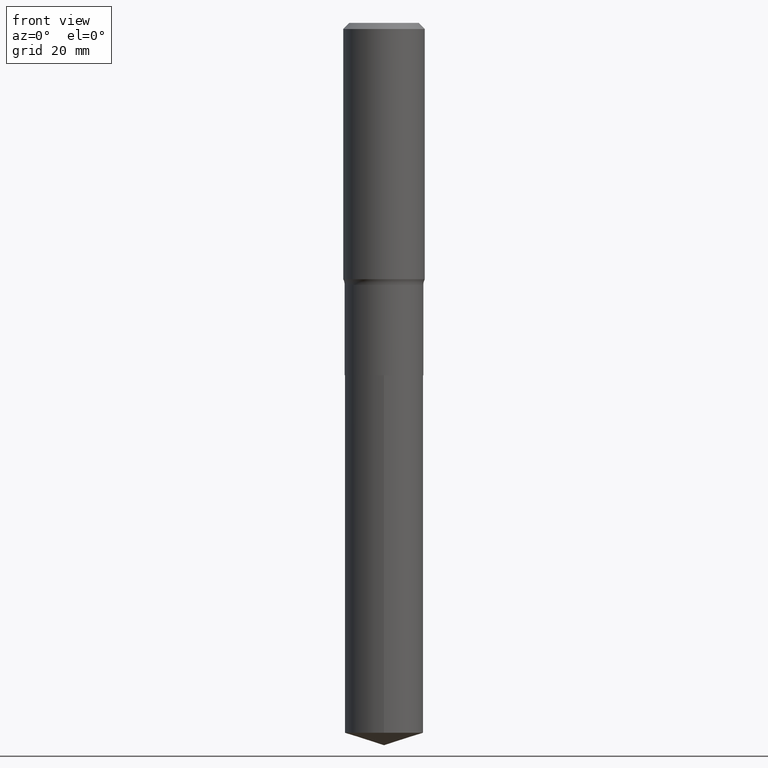
[diagram: clean part render]
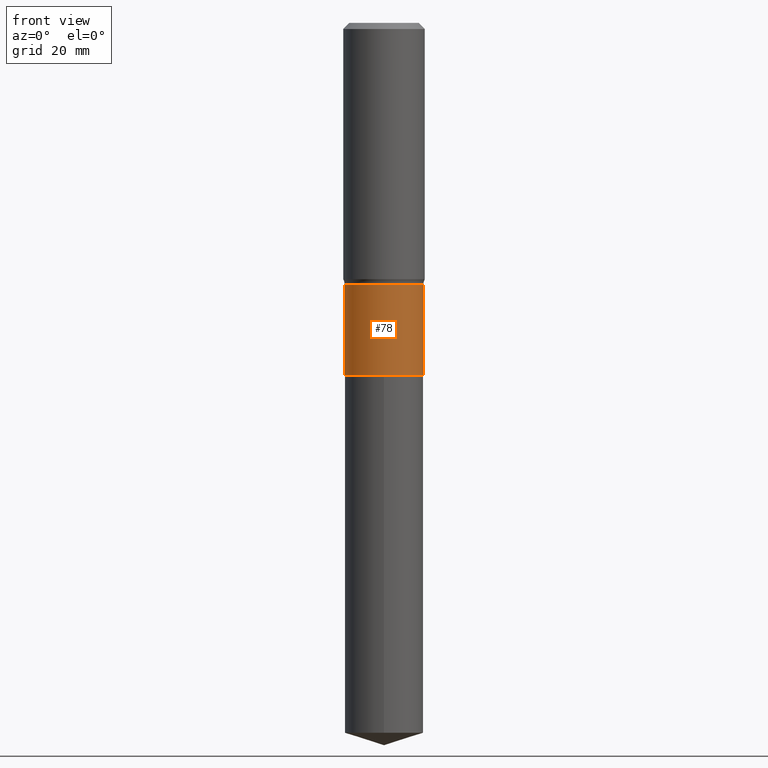
[diagram: same view with one face highlighted and labeled with its STEP entity id]
A machine part, front view. The second image highlights one B-rep face of the part: STEP entity #78.
In plain terms, the highlighted cylindrical surface (partial cylindrical patch) has radius 6.75 mm, axis along (-0, 0, 1).
Its self-contained STEP definition (entity closure, byte-faithful):
#10 = DIRECTION ( 'NONE',  ( -2.445468806185136597E-29, 3.491481338843145583E-15, 1.000000000000000000 ) ) ;
#15 = AXIS2_PLACEMENT_3D ( 'NONE', #176, #10, #438 ) ;
#23 = VECTOR ( 'NONE', #96, 39.37007874015748143 ) ;
#32 = CIRCLE ( 'NONE', #194, 0.2657499999999999862 ) ;
#51 = DIRECTION ( 'NONE',  ( -2.445468806185136597E-29, 3.491481338843145583E-15, 1.000000000000000000 ) ) ;
#62 = CARTESIAN_POINT ( 'NONE',  ( 0.2657499999999999862, -1.855722331595125347E-15, 1.295843978167769732E-29 ) ) ;
#73 = CARTESIAN_POINT ( 'NONE',  ( 0.2657500000000000417, -1.017033599191619229E-14, -2.381399999999999739 ) ) ;
#78 = ADVANCED_FACE ( 'NONE', ( #208 ), #315, .T. ) ;
#82 = ORIENTED_EDGE ( 'NONE', *, *, #226, .T. ) ;
#90 = CARTESIAN_POINT ( 'NONE',  ( -0.2657499999999999862, 1.888267320282466146E-15, -1.307207000235241229E-29 ) ) ;
#93 = LINE ( 'NONE', #90, #23 ) ;
#96 = DIRECTION ( 'NONE',  ( -2.445468806185136877E-29, 3.491481338843145188E-15, 1.000000000000000000 ) ) ;
#113 = DIRECTION ( 'NONE',  ( -2.445468806185136597E-29, 3.491481338843145583E-15, 1.000000000000000000 ) ) ;
#176 = CARTESIAN_POINT ( 'NONE',  ( 5.823639415049283689E-29, -8.314613660321065363E-15, -2.381399999999999739 ) ) ;
#179 = DIRECTION ( 'NONE',  ( -2.445468806185136877E-29, 3.491481338843145188E-15, 1.000000000000000000 ) ) ;
#192 = VERTEX_POINT ( 'NONE', #436 ) ;
#194 = AXIS2_PLACEMENT_3D ( 'NONE', #449, #113, #414 ) ;
#198 = VERTEX_POINT ( 'NONE', #388 ) ;
#208 = FACE_OUTER_BOUND ( 'NONE', #491, .T. ) ;
#221 = ORIENTED_EDGE ( 'NONE', *, *, #488, .F. ) ;
#226 = EDGE_CURVE ( 'NONE', #192, #291, #320, .T. ) ;
#238 = EDGE_CURVE ( 'NONE', #291, #198, #485, .T. ) ;
#268 = ORIENTED_EDGE ( 'NONE', *, *, #238, .T. ) ;
#281 = DIRECTION ( 'NONE',  ( 1.000000000000000000, -6.982962677686266711E-15, 4.876176775795935232E-29 ) ) ;
#291 = VERTEX_POINT ( 'NONE', #73 ) ;
#297 = VECTOR ( 'NONE', #179, 39.37007874015748143 ) ;
#315 = CYLINDRICAL_SURFACE ( 'NONE', #377, 0.2657499999999999862 ) ;
#320 = CIRCLE ( 'NONE', #15, 0.2657500000000000417 ) ;
#339 = ORIENTED_EDGE ( 'NONE', *, *, #410, .F. ) ;
#356 = CARTESIAN_POINT ( 'NONE',  ( 0.000000000000000000, 0.000000000000000000, 0.000000000000000000 ) ) ;
#377 = AXIS2_PLACEMENT_3D ( 'NONE', #356, #51, #281 ) ;
#388 = CARTESIAN_POINT ( 'NONE',  ( 0.2657499999999999862, -8.038088338284680266E-15, -1.770699999999999275 ) ) ;
#410 = EDGE_CURVE ( 'NONE', #482, #198, #32, .T. ) ;
#414 = DIRECTION ( 'NONE',  ( 1.000000000000000000, -6.982962677686264344E-15, 0.000000000000000000 ) ) ;
#426 = CARTESIAN_POINT ( 'NONE',  ( -0.2657499999999999862, -5.360222513222844389E-15, -1.770699999999999275 ) ) ;
#436 = CARTESIAN_POINT ( 'NONE',  ( -0.2657500000000000417, -5.360222513222844389E-15, -2.381399999999999739 ) ) ;
#438 = DIRECTION ( 'NONE',  ( 1.000000000000000000, -6.982962677686266711E-15, 0.000000000000000000 ) ) ;
#449 = CARTESIAN_POINT ( 'NONE',  ( 4.330191615112019703E-29, -6.182366006689555708E-15, -1.770699999999999275 ) ) ;
#482 = VERTEX_POINT ( 'NONE', #426 ) ;
#485 = LINE ( 'NONE', #62, #297 ) ;
#488 = EDGE_CURVE ( 'NONE', #192, #482, #93, .T. ) ;
#491 = EDGE_LOOP ( 'NONE', ( #221, #82, #268, #339 ) ) ;